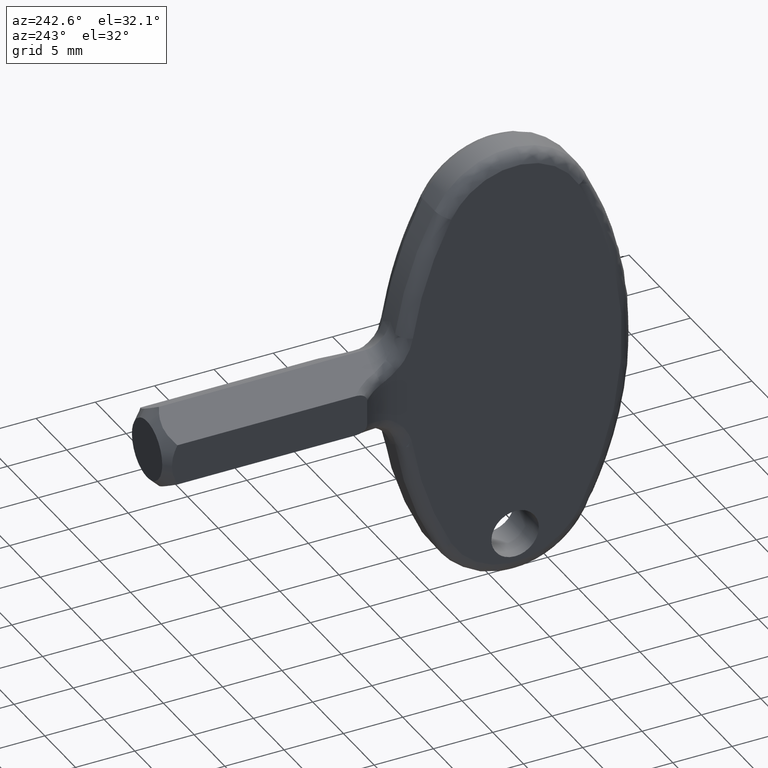
[diagram: clean part render]
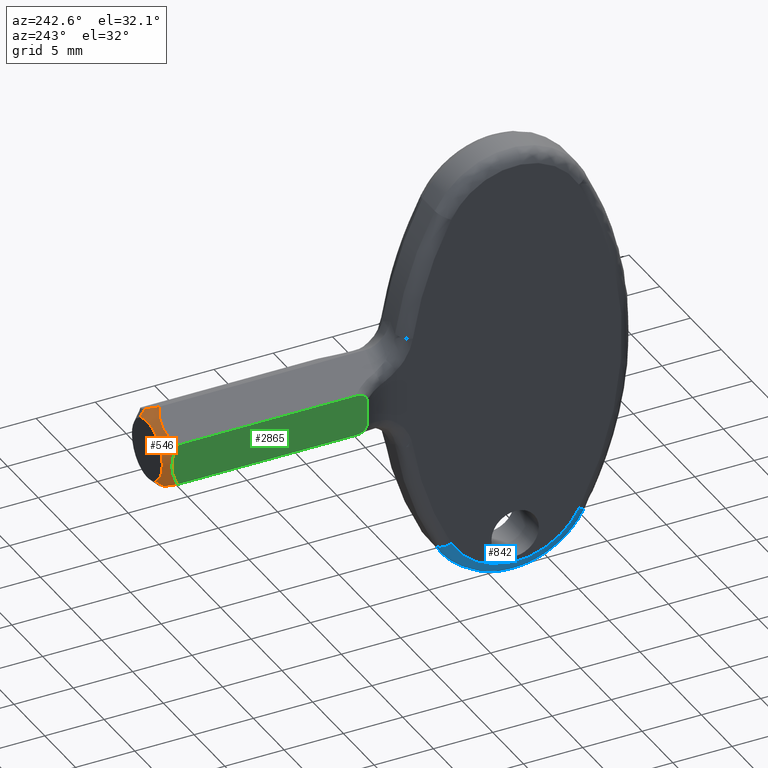
[diagram: same view with three faces highlighted in distinct colors, each labeled with its STEP entity id]
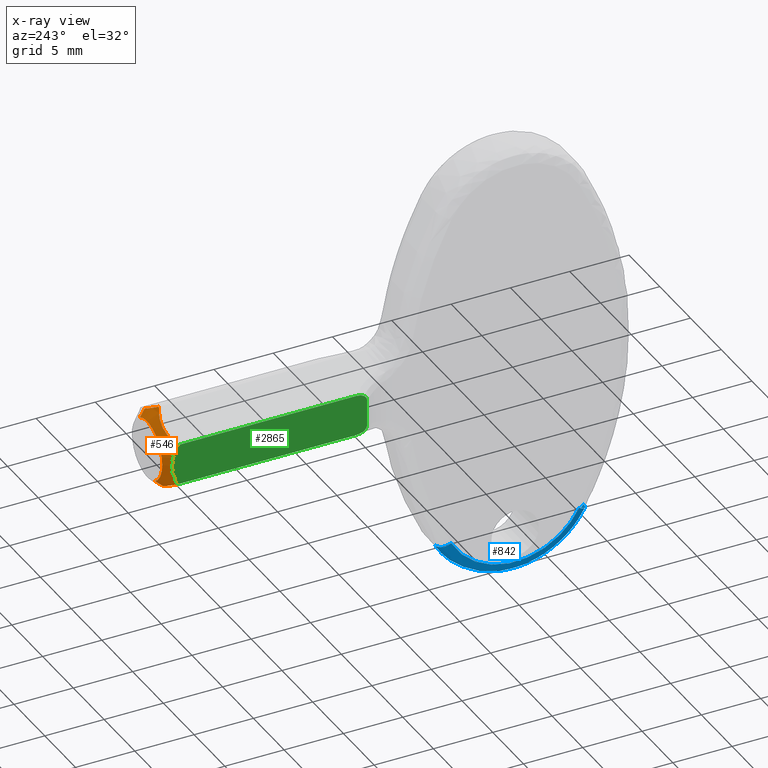
[diagram: x-ray of the same camera — body ghosted, the three highlighted faces saturated]
A machine part, auxiliary view with three faces highlighted in distinct colors.
The next image is the same camera in x-ray (body ghosted, the three faces saturated) — at least one of them is partly hidden behind the body in this view.
Their STEP definitions:

[orange] entity #546 — the highlighted face is a freeform B-spline surface patch.
#273=CARTESIAN_POINT('',(-1.297665209508857,-26.214806938457439,-2.094720244841235));
#274=VERTEX_POINT('',#273);
#299=CARTESIAN_POINT('',(1.175739312482330,-26.214806942355519,2.165508029731734));
#300=VERTEX_POINT('',#299);
#312=CARTESIAN_POINT('',(1.431902244539634,-26.751671035222511,2.637315751354219));
#313=VERTEX_POINT('',#312);
#314=CARTESIAN_POINT('',(1.175739312482330,-26.214806942355519,2.165508029731734));
#315=CARTESIAN_POINT('',(1.431902244539634,-26.751671035222511,2.637315751354219));
#316=QUASI_UNIFORM_CURVE('',1,(#314,#315),.UNSPECIFIED.,.F.,.U.);
#317=EDGE_CURVE('',#300,#313,#316,.T.);
#386=CARTESIAN_POINT('',(-1.580828791198583,-26.752500463046282,-2.551809240544301));
#387=VERTEX_POINT('',#386);
#403=CARTESIAN_POINT('',(-1.297665209508857,-26.214806938457439,-2.094720244841235));
#404=CARTESIAN_POINT('',(-1.580828791198583,-26.752500463046282,-2.551809240544301));
#405=QUASI_UNIFORM_CURVE('',1,(#403,#404),.UNSPECIFIED.,.F.,.U.);
#406=EDGE_CURVE('',#274,#387,#405,.T.);
#411=CARTESIAN_POINT('',(1.163805934014627,-26.189797000902889,2.143528814934934));
#412=CARTESIAN_POINT('',(-0.979722880920304,-26.189797000902892,3.307334748949560));
#413=CARTESIAN_POINT('',(-2.143528814934931,-26.189797000902889,1.163805934014629));
#414=CARTESIAN_POINT('',(-3.242572952098581,-26.189797000902885,-0.860442875895608));
#415=CARTESIAN_POINT('',(-1.284494328227716,-26.189797000902892,-2.073459513290489));
#416=CARTESIAN_POINT('',(1.665309631810109,-27.240842212959141,3.067211703638544));
#417=CARTESIAN_POINT('',(-1.401902071828433,-27.240842212959144,4.732521335448652));
#418=CARTESIAN_POINT('',(-3.067211703638542,-27.240842212959141,1.665309631810111));
#419=CARTESIAN_POINT('',(-4.639852582938313,-27.240842212959144,-1.231222291424867));
#420=CARTESIAN_POINT('',(-1.838004700168668,-27.240842212959155,-2.966948352582943));
#428=(BOUNDED_SURFACE()B_SPLINE_SURFACE(2,1,((#411,#416),(#412,#417),(#413,#418),(#414,#419),(#415,#420)),.UNSPECIFIED.,.F.,.F.,.U.)B_SPLINE_SURFACE_WITH_KNOTS((3,2,3),(2,2),(0.0,5.782645358894208,11.333984903432651),(0.0,1.0),.UNSPECIFIED.)GEOMETRIC_REPRESENTATION_ITEM()RATIONAL_B_SPLINE_SURFACE(((1.0,1.0),(0.707106781186548,0.707106781186548),(1.0,1.0),(0.718822509939086,0.718822509939086),(0.977505800795127,0.977505800795127)))REPRESENTATION_ITEM('')SURFACE());
#429=CARTESIAN_POINT('',(-2.464099999999854,-26.214807000000000,0.000000549874393));
#430=VERTEX_POINT('',#429);
#431=CARTESIAN_POINT('',(-1.297665209508857,-26.214806938457439,-2.094720244841235));
#432=CARTESIAN_POINT('',(-1.519483195539864,-26.214806942489769,-1.957470837857139));
#433=CARTESIAN_POINT('',(-1.888798378403385,-26.214806951889251,-1.637543292036030));
#434=CARTESIAN_POINT('',(-2.233330326225544,-26.214806967904771,-1.092423963182562));
#435=CARTESIAN_POINT('',(-2.421935282825272,-26.214806983908058,-0.547717388774368));
#436=CARTESIAN_POINT('',(-2.464146037525833,-26.214806994252680,-0.195622952133366));
#437=CARTESIAN_POINT('',(-2.464099999999854,-26.214807000000000,0.000000549874393));
#438=B_SPLINE_CURVE_WITH_KNOTS('',3,(#431,#432,#433,#434,#435,#436,#437),.UNSPECIFIED.,.F.,.U.,(4,1,1,1,4),(0.000000020946596,0.782491319153616,1.447596712167855,1.917097611617938,2.503963050045646),.UNSPECIFIED.);
#439=EDGE_CURVE('',#274,#430,#438,.T.);
#440=ORIENTED_EDGE('',*,*,#439,.F.);
#441=ORIENTED_EDGE('',*,*,#406,.T.);
#442=CARTESIAN_POINT('',(-3.0,-27.214783211632849,-1.732000000000000));
#443=VERTEX_POINT('',#442);
#444=CARTESIAN_POINT('',(-1.580828791198583,-26.752500463046282,-2.551809240544301));
#445=CARTESIAN_POINT('',(-1.682654766484204,-26.756128971609840,-2.492987679057877));
#446=CARTESIAN_POINT('',(-1.783818398643760,-26.766636211319359,-2.434548730227875));
#447=CARTESIAN_POINT('',(-2.013144234109715,-26.805316554255690,-2.302074630603169));
#448=CARTESIAN_POINT('',(-2.140910497367737,-26.837601672894941,-2.228268200644740));
#449=CARTESIAN_POINT('',(-2.394670757458717,-26.920577693788161,-2.081679117586273));
#450=CARTESIAN_POINT('',(-2.518884909391818,-26.970640535059839,-2.009924623246231));
#451=CARTESIAN_POINT('',(-2.762554041272372,-27.083705407321681,-1.869164850980541));
#452=CARTESIAN_POINT('',(-2.882137896602305,-27.146752509892170,-1.800085125920031));
#453=CARTESIAN_POINT('',(-3.0,-27.214783211632849,-1.732000000000000));
#454=B_SPLINE_CURVE_WITH_KNOTS('',3,(#444,#445,#446,#447,#448,#449,#450,#451,#452,#453),.UNSPECIFIED.,.F.,.U.,(4,2,2,2,4),(0.527411272684405,0.625000000000000,0.750000000000000,0.875000000000000,1.0),.UNSPECIFIED.);
#455=EDGE_CURVE('',#387,#443,#454,.T.);
#456=ORIENTED_EDGE('',*,*,#455,.T.);
#457=CARTESIAN_POINT('',(-3.0,-27.214783211632849,1.732000000000000));
#458=VERTEX_POINT('',#457);
#459=CARTESIAN_POINT('',(-3.0,-27.214783211632849,-1.732000000000001));
#460=CARTESIAN_POINT('',(-3.0,-27.147704106223880,-1.597838837560724));
#461=CARTESIAN_POINT('',(-3.0,-27.085082365954239,-1.461019326312583));
#462=CARTESIAN_POINT('',(-3.0,-27.000218416237900,-1.250381558546961));
#463=CARTESIAN_POINT('',(-3.0,-26.973397651901990,-1.179084988462207));
#464=CARTESIAN_POINT('',(-3.0,-26.923832483836481,-1.035968970738439));
#465=CARTESIAN_POINT('',(-3.0,-26.901027976103681,-0.964020642895902));
#466=CARTESIAN_POINT('',(-3.0,-26.839166134332459,-0.746882865143813));
#467=CARTESIAN_POINT('',(-3.0,-26.806669484556760,-0.600398844547657));
#468=CARTESIAN_POINT('',(-3.000000000000001,-26.773485597737139,-0.377602260740404));
#469=CARTESIAN_POINT('',(-3.0,-26.765016509217219,-0.302825231995662));
#470=CARTESIAN_POINT('',(-2.999999999999999,-26.753624987984480,-0.152176694459734));
#471=CARTESIAN_POINT('',(-3.0,-26.750703945016550,-0.076142731150350));
#472=CARTESIAN_POINT('',(-3.0,-26.750719231988398,0.305172276694251));
#473=CARTESIAN_POINT('',(-3.0,-26.797796443903959,0.601774982061606));
#474=CARTESIAN_POINT('',(-3.0,-26.901181110273871,0.964532690023094));
#475=CARTESIAN_POINT('',(-3.0,-26.924062854563608,1.036688414793781));
#476=CARTESIAN_POINT('',(-2.999999999999999,-26.973830893556759,1.180280950829475));
#477=CARTESIAN_POINT('',(-3.0,-27.000586976190419,1.251330650880655));
#478=CARTESIAN_POINT('',(-2.999999999999999,-27.085284034353030,1.461450700774133));
#479=CARTESIAN_POINT('',(-3.0,-27.147796226140208,1.598023081446885));
#480=CARTESIAN_POINT('',(-3.0,-27.214783211632849,1.732000000000003));
#481=B_SPLINE_CURVE_WITH_KNOTS('',3,(#459,#460,#461,#462,#463,#464,#465,#466,#467,#468,#469,#470,#471,#472,#473,#474,#475,#476,#477,#478,#479,#480),.UNSPECIFIED.,.F.,.U.,(4,2,2,2,2,2,2,2,2,2,4),(0.0,0.125000000000001,0.187500000000001,0.250000000000001,0.375000000000001,0.437500000000002,0.500000000000002,0.750000000000003,0.812500000000002,0.875000000000002,1.0),.UNSPECIFIED.);
#482=EDGE_CURVE('',#443,#458,#481,.T.);
#483=ORIENTED_EDGE('',*,*,#482,.T.);
#484=CARTESIAN_POINT('',(9.168277E-015,-27.214707000000100,3.464000000000000));
#485=VERTEX_POINT('',#484);
#486=CARTESIAN_POINT('',(-3.0,-27.214783211632849,1.732000000000000));
#487=CARTESIAN_POINT('',(-2.765605443605633,-27.079450489344080,1.867323790558349));
#488=CARTESIAN_POINT('',(-2.525923533749375,-26.964382089513499,2.005700146515361));
#489=CARTESIAN_POINT('',(-2.153539856137548,-26.841069869177382,2.220689656389923));
#490=CARTESIAN_POINT('',(-2.027245883503552,-26.808267519054770,2.293603376590617));
#491=CARTESIAN_POINT('',(-1.833799680967095,-26.774414499208621,2.405286317521665));
#492=CARTESIAN_POINT('',(-1.768649466875101,-26.765690899305159,2.442899707790776));
#493=CARTESIAN_POINT('',(-1.636886604274114,-26.753848628847791,2.518970800465746));
#494=CARTESIAN_POINT('',(-1.571005958509198,-26.750810878671601,2.557005893287358));
#495=CARTESIAN_POINT('',(-1.374585769063117,-26.750322133642310,2.670405815994229));
#496=CARTESIAN_POINT('',(-1.244745190283104,-26.761483988307081,2.745367110143223));
#497=CARTESIAN_POINT('',(-0.987103192808298,-26.804983730648861,2.894112423352010));
#498=CARTESIAN_POINT('',(-0.859299740599007,-26.837300500920492,2.967897616427508));
#499=CARTESIAN_POINT('',(-0.605465659371895,-26.920344250009659,3.114444492655963));
#500=CARTESIAN_POINT('',(-0.481227696398264,-26.970437742023471,3.186171209946072));
#501=CARTESIAN_POINT('',(-0.237501296281377,-27.083566669415909,3.326882584946888));
#502=CARTESIAN_POINT('',(-0.117889566306134,-27.146645423719050,3.395938423719260));
#503=CARTESIAN_POINT('',(9.168277E-015,-27.214707000000100,3.464000000000000));
#504=B_SPLINE_CURVE_WITH_KNOTS('',3,(#486,#487,#488,#489,#490,#491,#492,#493,#494,#495,#496,#497,#498,#499,#500,#501,#502,#503),.UNSPECIFIED.,.F.,.U.,(4,2,2,2,2,2,2,2,4),(0.0,0.250000000000000,0.375000000000001,0.437500000000001,0.500000000000001,0.625000000000001,0.750000000000000,0.875000000000000,1.0),.UNSPECIFIED.);
#505=EDGE_CURVE('',#458,#485,#504,.T.);
#506=ORIENTED_EDGE('',*,*,#505,.T.);
#507=CARTESIAN_POINT('',(1.473603E-015,-27.214707000000079,3.463999999999999));
#508=CARTESIAN_POINT('',(0.234397859508904,-27.079381302443618,3.328674302443528));
#509=CARTESIAN_POINT('',(0.474083269915045,-26.964322309079460,3.190295925502383));
#510=CARTESIAN_POINT('',(0.846472421409512,-26.841029005965520,2.975303255372912));
#511=CARTESIAN_POINT('',(0.972768252745577,-26.808233757897760,2.902388462081557));
#512=CARTESIAN_POINT('',(1.166217222288922,-26.774392541412301,2.790703923665201));
#513=CARTESIAN_POINT('',(1.231368354562315,-26.765673065383609,2.753090003299362));
#514=CARTESIAN_POINT('',(1.342178519577310,-26.755721287738549,2.689115601364038));
#515=CARTESIAN_POINT('',(1.387104895916333,-26.753027357735601,2.663178106757642));
#516=CARTESIAN_POINT('',(1.431902244539634,-26.751671035222511,2.637315751354219));
#517=B_SPLINE_CURVE_WITH_KNOTS('',3,(#507,#508,#509,#510,#511,#512,#513,#514,#515,#516),.UNSPECIFIED.,.F.,.U.,(4,2,2,2,4),(0.0,0.250000000000001,0.375000000000001,0.437500000000001,0.480121279270310),.UNSPECIFIED.);
#518=EDGE_CURVE('',#485,#313,#517,.T.);
#519=ORIENTED_EDGE('',*,*,#518,.T.);
#520=ORIENTED_EDGE('',*,*,#317,.F.);
#521=CARTESIAN_POINT('',(0.0,-26.214807000000000,2.464099999999917));
#522=VERTEX_POINT('',#521);
#523=CARTESIAN_POINT('',(0.0,-26.214807000000000,2.464099999999917));
#524=CARTESIAN_POINT('',(0.268140195351695,-26.214806986853588,2.464271330142872));
#525=CARTESIAN_POINT('',(0.676572414485503,-26.214806966828728,2.396729135571441));
#526=CARTESIAN_POINT('',(1.052320073555937,-26.214806948406601,2.232518694227405));
#527=CARTESIAN_POINT('',(1.175739312482330,-26.214806942355519,2.165508029731734));
#528=B_SPLINE_CURVE_WITH_KNOTS('',3,(#523,#524,#525,#526,#527),.UNSPECIFIED.,.F.,.U.,(4,1,4),(6.342983E-009,0.804345863623854,1.225670751675012),.UNSPECIFIED.);
#529=EDGE_CURVE('',#522,#300,#528,.T.);
#530=ORIENTED_EDGE('',*,*,#529,.F.);
#531=CARTESIAN_POINT('',(-2.464099999999854,-26.214807000000000,0.000000549874393));
#532=CARTESIAN_POINT('',(-2.464241484360510,-26.214806999999940,0.252014968523982));
#533=CARTESIAN_POINT('',(-2.411055761626570,-26.214807000000039,0.594639920704526));
#534=CARTESIAN_POINT('',(-2.239412984813729,-26.214807000000071,1.047796632533868));
#535=CARTESIAN_POINT('',(-2.034550290792084,-26.214806999999720,1.420059278910730));
#536=CARTESIAN_POINT('',(-1.672623284412560,-26.214807000000349,1.844988607942948));
#537=CARTESIAN_POINT('',(-1.215207787850443,-26.214806999999809,2.167070621540290));
#538=CARTESIAN_POINT('',(-0.645034411306114,-26.214807000000270,2.403264672045387));
#539=CARTESIAN_POINT('',(-0.252005593630950,-26.214806999999951,2.464207196542860));
#540=CARTESIAN_POINT('',(0.0,-26.214807000000000,2.464099999999917));
#541=B_SPLINE_CURVE_WITH_KNOTS('',3,(#531,#532,#533,#534,#535,#536,#537,#538,#539,#540),.UNSPECIFIED.,.F.,.U.,(4,1,1,1,1,1,1,4),(0.000000062426321,0.755980475378370,1.028135582315662,1.451494481745473,2.026026629591440,2.691291415230456,3.114643422492545,3.870623205306314),.UNSPECIFIED.);
#542=EDGE_CURVE('',#430,#522,#541,.T.);
#543=ORIENTED_EDGE('',*,*,#542,.F.);
#544=EDGE_LOOP('',(#440,#441,#456,#483,#506,#519,#520,#530,#543));
#545=FACE_OUTER_BOUND('',#544,.T.);
#546=ADVANCED_FACE('',(#545),#428,.T.);

[blue] entity #842 — the highlighted face is a freeform B-spline surface patch.
#660=CARTESIAN_POINT('',(-2.0,-61.600066539237901,-14.289291123813360));
#661=VERTEX_POINT('',#660);
#662=CARTESIAN_POINT('',(-1.0,-62.479776247051213,-14.764802248792600));
#663=VERTEX_POINT('',#662);
#664=CARTESIAN_POINT('',(-2.0,-61.600066539237901,-14.289291123813360));
#665=CARTESIAN_POINT('',(-2.000111500773128,-61.708039253795683,-14.347653816086050));
#666=CARTESIAN_POINT('',(-1.963376383672546,-61.880696199757118,-14.440980396298210));
#667=CARTESIAN_POINT('',(-1.838252918045417,-62.092791174379691,-14.555624487513111));
#668=CARTESIAN_POINT('',(-1.668708614500387,-62.270142375293098,-14.651488462087659));
#669=CARTESIAN_POINT('',(-1.392606563590662,-62.432467944147668,-14.739230603811590));
#670=CARTESIAN_POINT('',(-1.139098644417758,-62.479924425514881,-14.764882343973291));
#671=CARTESIAN_POINT('',(-1.0,-62.479776247051213,-14.764802248792600));
#672=B_SPLINE_CURVE_WITH_KNOTS('',3,(#664,#665,#666,#667,#668,#669,#670,#671),.UNSPECIFIED.,.F.,.U.,(4,1,1,1,1,4),(0.000000086231302,0.368163986613704,0.589074801685017,0.809950586006599,1.153581815667513,1.570835744339486),.UNSPECIFIED.);
#673=EDGE_CURVE('',#661,#663,#672,.T.);
#763=CARTESIAN_POINT('',(-0.930462757673195,-49.634449557577369,-14.095383895865728));
#764=CARTESIAN_POINT('',(-0.930462757673195,-51.452102304269133,-18.497598623958087));
#765=CARTESIAN_POINT('',(-0.930462757673195,-56.214807000110497,-18.497598623958087));
#766=CARTESIAN_POINT('',(-0.930462757673195,-60.977511317026284,-18.497598623958076));
#767=CARTESIAN_POINT('',(-0.930462757673195,-62.795164242838325,-14.095384379778785));
#768=CARTESIAN_POINT('',(-2.077538267347310,-49.560543576623047,-14.125899310850208));
#769=CARTESIAN_POINT('',(-2.077538267347310,-51.398610930036689,-18.577556641520381));
#770=CARTESIAN_POINT('',(-2.077538267347309,-56.214807000110497,-18.577556641520381));
#771=CARTESIAN_POINT('',(-2.077538267347309,-61.031002687002896,-18.577556641520374));
#772=CARTESIAN_POINT('',(-2.077538267347309,-62.869070221548540,-14.125899800198232));
#773=CARTESIAN_POINT('',(-1.997579298540556,-50.620796675125959,-13.688126036324510));
#774=CARTESIAN_POINT('',(-1.997579298540557,-52.165996661757099,-17.430481198154094));
#775=CARTESIAN_POINT('',(-1.997579298540556,-56.214807000110497,-17.430481198154084));
#776=CARTESIAN_POINT('',(-1.997579298540556,-60.263617016336475,-17.430481198154091));
#777=CARTESIAN_POINT('',(-1.997579298540557,-61.808817155239048,-13.688126447702555));
#785=(BOUNDED_SURFACE()B_SPLINE_SURFACE(2,2,((#763,#768,#773),(#764,#769,#774),(#765,#770,#775),(#766,#771,#776),(#767,#772,#777)),.UNSPECIFIED.,.F.,.F.,.U.)B_SPLINE_SURFACE_WITH_KNOTS((3,2,3),(3,3),(0.0,8.646537427997577,17.293074293065029),(0.0,1.822375235531459),.UNSPECIFIED.)GEOMETRIC_REPRESENTATION_ITEM()RATIONAL_B_SPLINE_SURFACE(((0.891036282880326,0.584720002314034,0.891036619526303),(0.752227571471984,0.493630299666319,0.752227855674087),(0.919257690177066,0.603239586372399,0.919258037485485),(0.752227582346428,0.493630306802398,0.752227866548535),(0.891036264806132,0.584719990453301,0.891036601452101)))REPRESENTATION_ITEM('')SURFACE());
#786=CARTESIAN_POINT('',(-2.0,-50.829547461211902,-14.289291123774660));
#787=VERTEX_POINT('',#786);
#788=CARTESIAN_POINT('',(-1.0,-49.949837753211099,-14.764802248869140));
#789=VERTEX_POINT('',#788);
#790=CARTESIAN_POINT('',(-2.0,-50.829547461211902,-14.289291123774660));
#791=CARTESIAN_POINT('',(-2.000055477026006,-50.735980938994530,-14.339866810101761));
#792=CARTESIAN_POINT('',(-1.971007114646643,-50.577675565451173,-14.425435908177549));
#793=CARTESIAN_POINT('',(-1.857885782024525,-50.360421820440898,-14.542868479150931));
#794=CARTESIAN_POINT('',(-1.718609192336952,-50.207324168378349,-14.625622637846140));
#795=CARTESIAN_POINT('',(-1.545494210278807,-50.085464077078342,-14.691491899707410));
#796=CARTESIAN_POINT('',(-1.319006485599269,-49.982051167805423,-14.747389871947981));
#797=CARTESIAN_POINT('',(-1.122735467804579,-49.949741177389100,-14.764854451177900));
#798=CARTESIAN_POINT('',(-1.0,-49.949837753211099,-14.764802248869140));
#799=B_SPLINE_CURVE_WITH_KNOTS('',3,(#790,#791,#792,#793,#794,#795,#796,#797,#798),.UNSPECIFIED.,.F.,.U.,(4,1,1,1,1,1,4),(0.000000086229432,0.319071751797172,0.539979768580550,0.809950586129590,0.981761029036349,1.202671844141867,1.570835744580915),.UNSPECIFIED.);
#800=EDGE_CURVE('',#787,#789,#799,.T.);
#801=ORIENTED_EDGE('',*,*,#800,.T.);
#802=CARTESIAN_POINT('',(-1.0,-62.479776247051213,-14.764802248792600));
#803=CARTESIAN_POINT('',(-1.0,-62.204924735780899,-15.273634467252229));
#804=CARTESIAN_POINT('',(-0.999999999999998,-61.693009842015350,-15.994223853058021));
#805=CARTESIAN_POINT('',(-1.000000000000001,-60.716304907118733,-16.938792549072179));
#806=CARTESIAN_POINT('',(-0.999999999999999,-59.760040058460497,-17.599811924039621));
#807=CARTESIAN_POINT('',(-1.000000000000000,-58.702560111908198,-18.077360551992829));
#808=CARTESIAN_POINT('',(-1.000000000000007,-57.646822009857608,-18.382573865178319));
#809=CARTESIAN_POINT('',(-0.999999999999997,-56.614650381312551,-18.517735158337931));
#810=CARTESIAN_POINT('',(-1.000000000000000,-55.515735947878767,-18.490016647959649));
#811=CARTESIAN_POINT('',(-1.0,-54.510177746281173,-18.319467457606770));
#812=CARTESIAN_POINT('',(-0.999999999999999,-53.350603339572771,-17.941685966964481));
#813=CARTESIAN_POINT('',(-1.000000000000002,-52.238860892025933,-17.340633670150101));
#814=CARTESIAN_POINT('',(-0.999999999999996,-51.311957798247292,-16.577346899849971));
#815=CARTESIAN_POINT('',(-1.000000000000009,-50.558359193908423,-15.750614134833310));
#816=CARTESIAN_POINT('',(-0.999999999999978,-50.158411153457962,-15.150767172438821));
#817=CARTESIAN_POINT('',(-1.0,-49.949837753211099,-14.764802248869140));
#818=B_SPLINE_CURVE_WITH_KNOTS('',3,(#802,#803,#804,#805,#806,#807,#808,#809,#810,#811,#812,#813,#814,#815,#816,#817),.UNSPECIFIED.,.F.,.U.,(4,1,1,1,1,1,1,1,1,1,1,1,1,4),(0.000000056356456,1.734900595839289,2.632279413443600,4.068084073406661,5.204753990855997,6.102132728825755,7.358453948975981,8.315615641970354,9.392483318102784,10.409497625611420,11.964953464976620,13.161458114476339,13.998993494945999,15.315135247570050),.UNSPECIFIED.);
#819=EDGE_CURVE('',#663,#789,#818,.T.);
#820=ORIENTED_EDGE('',*,*,#819,.F.);
#821=ORIENTED_EDGE('',*,*,#673,.F.);
#822=CARTESIAN_POINT('',(-2.0,-50.829547461211902,-14.289291123774660));
#823=CARTESIAN_POINT('',(-2.0,-51.082087083909073,-14.756848138461530));
#824=CARTESIAN_POINT('',(-2.000000000000004,-51.568303630513249,-15.429213877700500));
#825=CARTESIAN_POINT('',(-1.999999999999989,-52.453882205055891,-16.243397546670248));
#826=CARTESIAN_POINT('',(-2.000000000000019,-53.303649079401133,-16.799711001275980));
#827=CARTESIAN_POINT('',(-2.000000000000005,-54.332117122876681,-17.238438146877741));
#828=CARTESIAN_POINT('',(-1.999999999999976,-55.457470507888040,-17.493221148312511));
#829=CARTESIAN_POINT('',(-1.999999999999970,-56.628644782166589,-17.522707817356149));
#830=CARTESIAN_POINT('',(-2.000000000000065,-57.783142046542842,-17.331897427304661));
#831=CARTESIAN_POINT('',(-1.999999999999959,-58.770467334635399,-16.973027128238162));
#832=CARTESIAN_POINT('',(-2.000000000000004,-59.532510780018640,-16.540070900169042));
#833=CARTESIAN_POINT('',(-1.999999999999996,-60.140705896891681,-16.092672634596660));
#834=CARTESIAN_POINT('',(-2.000000000000004,-60.871433125817127,-15.415209608905680));
#835=CARTESIAN_POINT('',(-1.999999999999997,-61.347538207183391,-14.756858836931681));
#836=CARTESIAN_POINT('',(-2.0,-61.600066539237901,-14.289291123813360));
#837=B_SPLINE_CURVE_WITH_KNOTS('',3,(#822,#823,#824,#825,#826,#827,#828,#829,#830,#831,#832,#833,#834,#835,#836),.UNSPECIFIED.,.F.,.U.,(4,1,1,1,1,1,1,1,1,1,1,1,4),(0.000000067263363,1.594140658604021,2.468365302372416,3.599703383353713,4.628196834843411,5.810954042788731,7.045107026163488,8.125029595706344,9.307801334124610,10.182018527630960,10.747685083948650,11.570474728868909,13.164626183083049),.UNSPECIFIED.);
#838=EDGE_CURVE('',#787,#661,#837,.T.);
#839=ORIENTED_EDGE('',*,*,#838,.F.);
#840=EDGE_LOOP('',(#801,#820,#821,#839));
#841=FACE_OUTER_BOUND('',#840,.T.);
#842=ADVANCED_FACE('',(#841),#785,.T.);

[green] entity #2865 — the highlighted face is a freeform B-spline surface patch.
#442=CARTESIAN_POINT('',(-3.0,-27.214783211632849,-1.732000000000000));
#443=VERTEX_POINT('',#442);
#457=CARTESIAN_POINT('',(-3.0,-27.214783211632849,1.732000000000000));
#458=VERTEX_POINT('',#457);
#459=CARTESIAN_POINT('',(-3.0,-27.214783211632849,-1.732000000000001));
#460=CARTESIAN_POINT('',(-3.0,-27.147704106223880,-1.597838837560724));
#461=CARTESIAN_POINT('',(-3.0,-27.085082365954239,-1.461019326312583));
#462=CARTESIAN_POINT('',(-3.0,-27.000218416237900,-1.250381558546961));
#463=CARTESIAN_POINT('',(-3.0,-26.973397651901990,-1.179084988462207));
#464=CARTESIAN_POINT('',(-3.0,-26.923832483836481,-1.035968970738439));
#465=CARTESIAN_POINT('',(-3.0,-26.901027976103681,-0.964020642895902));
#466=CARTESIAN_POINT('',(-3.0,-26.839166134332459,-0.746882865143813));
#467=CARTESIAN_POINT('',(-3.0,-26.806669484556760,-0.600398844547657));
#468=CARTESIAN_POINT('',(-3.000000000000001,-26.773485597737139,-0.377602260740404));
#469=CARTESIAN_POINT('',(-3.0,-26.765016509217219,-0.302825231995662));
#470=CARTESIAN_POINT('',(-2.999999999999999,-26.753624987984480,-0.152176694459734));
#471=CARTESIAN_POINT('',(-3.0,-26.750703945016550,-0.076142731150350));
#472=CARTESIAN_POINT('',(-3.0,-26.750719231988398,0.305172276694251));
#473=CARTESIAN_POINT('',(-3.0,-26.797796443903959,0.601774982061606));
#474=CARTESIAN_POINT('',(-3.0,-26.901181110273871,0.964532690023094));
#475=CARTESIAN_POINT('',(-3.0,-26.924062854563608,1.036688414793781));
#476=CARTESIAN_POINT('',(-2.999999999999999,-26.973830893556759,1.180280950829475));
#477=CARTESIAN_POINT('',(-3.0,-27.000586976190419,1.251330650880655));
#478=CARTESIAN_POINT('',(-2.999999999999999,-27.085284034353030,1.461450700774133));
#479=CARTESIAN_POINT('',(-3.0,-27.147796226140208,1.598023081446885));
#480=CARTESIAN_POINT('',(-3.0,-27.214783211632849,1.732000000000003));
#481=B_SPLINE_CURVE_WITH_KNOTS('',3,(#459,#460,#461,#462,#463,#464,#465,#466,#467,#468,#469,#470,#471,#472,#473,#474,#475,#476,#477,#478,#479,#480),.UNSPECIFIED.,.F.,.U.,(4,2,2,2,2,2,2,2,2,2,4),(0.0,0.125000000000001,0.187500000000001,0.250000000000001,0.375000000000001,0.437500000000002,0.500000000000002,0.750000000000003,0.812500000000002,0.875000000000002,1.0),.UNSPECIFIED.);
#482=EDGE_CURVE('',#443,#458,#481,.T.);
#1283=CARTESIAN_POINT('',(-3.0,-43.214807000000000,1.039174596122460));
#1284=VERTEX_POINT('',#1283);
#1285=CARTESIAN_POINT('',(-3.0,-42.246167560290303,1.732000000000000));
#1286=VERTEX_POINT('',#1285);
#1287=CARTESIAN_POINT('',(-3.0,-43.214807000000000,1.039174596122420));
#1288=CARTESIAN_POINT('',(-3.0,-43.214806999999993,1.095146140128865));
#1289=CARTESIAN_POINT('',(-3.000000000000001,-43.208007416826760,1.149989578650173));
#1290=CARTESIAN_POINT('',(-3.0,-43.185904043015107,1.230279767337100));
#1291=CARTESIAN_POINT('',(-3.0,-43.176442507301637,1.256867239634961));
#1292=CARTESIAN_POINT('',(-3.0,-43.154003802763462,1.307583937837306));
#1293=CARTESIAN_POINT('',(-3.0,-43.140998380836123,1.331913757656596));
#1294=CARTESIAN_POINT('',(-3.0,-43.096853672972642,1.401949943244760));
#1295=CARTESIAN_POINT('',(-3.0,-43.060088639561513,1.444996346388036));
#1296=CARTESIAN_POINT('',(-3.0,-42.998748688099568,1.501152455791730));
#1297=CARTESIAN_POINT('',(-3.0,-42.977193084094552,1.518625055535203));
#1298=CARTESIAN_POINT('',(-3.000000000000001,-42.932080259963378,1.551321088942201));
#1299=CARTESIAN_POINT('',(-3.0,-42.908540734353082,1.566509796990819));
#1300=CARTESIAN_POINT('',(-3.0,-42.836663376773110,1.608201618673211));
#1301=CARTESIAN_POINT('',(-3.0,-42.786602136951821,1.631241212725308));
#1302=CARTESIAN_POINT('',(-3.0,-42.683094782292663,1.669809941971909));
#1303=CARTESIAN_POINT('',(-3.0,-42.629313833859626,1.685360840723235));
#1304=CARTESIAN_POINT('',(-2.999999999999999,-42.467206307745457,1.721408440788251));
#1305=CARTESIAN_POINT('',(-3.0,-42.357378781633201,1.731999999999967));
#1306=CARTESIAN_POINT('',(-3.0,-42.246167560290253,1.731999999999970));
#1307=B_SPLINE_CURVE_WITH_KNOTS('',3,(#1287,#1288,#1289,#1290,#1291,#1292,#1293,#1294,#1295,#1296,#1297,#1298,#1299,#1300,#1301,#1302,#1303,#1304,#1305,#1306),.UNSPECIFIED.,.F.,.U.,(4,2,2,2,2,2,2,2,2,4),(0.0,0.124999999999993,0.187499999999989,0.249999999999986,0.374999999999969,0.437499999999967,0.499999999999965,0.624999999999973,0.749999999999982,1.0),.UNSPECIFIED.);
#1308=EDGE_CURVE('',#1284,#1286,#1307,.T.);
#1470=CARTESIAN_POINT('',(-3.0,-42.246413019791497,-1.732000000000000));
#1471=VERTEX_POINT('',#1470);
#1472=CARTESIAN_POINT('',(-3.0,-43.214807000000000,-1.039274563709224));
#1473=VERTEX_POINT('',#1472);
#1474=CARTESIAN_POINT('',(-2.999999999999965,-42.246413019791447,-1.732000000000000));
#1475=CARTESIAN_POINT('',(-2.999999999999965,-42.357577282917219,-1.731999999999998));
#1476=CARTESIAN_POINT('',(-3.0,-42.466921625229723,-1.721393188315178));
#1477=CARTESIAN_POINT('',(-3.0,-42.627570439072080,-1.685855437828425));
#1478=CARTESIAN_POINT('',(-3.0,-42.680551771128080,-1.670697530738425));
#1479=CARTESIAN_POINT('',(-3.0,-42.785076001636860,-1.631998277983124));
#1480=CARTESIAN_POINT('',(-3.000000000000001,-42.835723356257311,-1.608748110272058));
#1481=CARTESIAN_POINT('',(-3.0,-42.907638108799802,-1.567158937856098));
#1482=CARTESIAN_POINT('',(-3.0,-42.930980322105952,-1.552150150252280));
#1483=CARTESIAN_POINT('',(-3.0,-42.976211631302647,-1.519487266093805));
#1484=CARTESIAN_POINT('',(-3.0,-42.998030913203067,-1.501855490743845));
#1485=CARTESIAN_POINT('',(-3.0,-43.038990504879017,-1.464462516504485));
#1486=CARTESIAN_POINT('',(-3.0,-43.058257241543899,-1.444615602994118));
#1487=CARTESIAN_POINT('',(-3.0,-43.094112791000640,-1.402382118911291));
#1488=CARTESIAN_POINT('',(-3.0,-43.110796721284302,-1.379843121315503));
#1489=CARTESIAN_POINT('',(-3.0,-43.155642150433593,-1.308971536255750));
#1490=CARTESIAN_POINT('',(-3.0,-43.177999396889668,-1.258564840515158));
#1491=CARTESIAN_POINT('',(-3.0,-43.200325980884422,-1.178258350876370));
#1492=CARTESIAN_POINT('',(-3.0,-43.205882525162529,-1.150589467222397));
#1493=CARTESIAN_POINT('',(-3.0,-43.213090938569898,-1.095209680478149));
#1494=CARTESIAN_POINT('',(-3.0,-43.214807000000022,-1.067328877316217));
#1495=CARTESIAN_POINT('',(-3.0,-43.214807000000000,-1.039274563709196));
#1496=B_SPLINE_CURVE_WITH_KNOTS('',3,(#1474,#1475,#1476,#1477,#1478,#1479,#1480,#1481,#1482,#1483,#1484,#1485,#1486,#1487,#1488,#1489,#1490,#1491,#1492,#1493,#1494,#1495),.UNSPECIFIED.,.F.,.U.,(4,2,2,2,2,2,2,2,2,2,4),(0.0,0.250000000000014,0.375000000000020,0.500000000000027,0.562500000000024,0.625000000000021,0.687500000000017,0.750000000000014,0.875000000000007,0.937500000000003,1.0),.UNSPECIFIED.);
#1497=EDGE_CURVE('',#1471,#1473,#1496,.T.);
#2803=CARTESIAN_POINT('',(-3.0,-43.214807000000000,1.039174596122460));
#2804=CARTESIAN_POINT('',(-3.0,-43.214807000000000,-1.039274563709224));
#2805=QUASI_UNIFORM_CURVE('',1,(#2803,#2804),.UNSPECIFIED.,.F.,.U.);
#2806=EDGE_CURVE('',#1284,#1473,#2805,.T.);
#2844=CARTESIAN_POINT('',(-3.0,-44.037187313288229,-1.905026793286096));
#2845=CARTESIAN_POINT('',(-3.0,-44.037187313288229,1.905026886197816));
#2846=CARTESIAN_POINT('',(-3.0,-25.928326097931791,-1.905026793286096));
#2847=CARTESIAN_POINT('',(-3.0,-25.928326097931791,1.905026886197816));
#2848=B_SPLINE_SURFACE_WITH_KNOTS('',1,1,((#2844,#2846),(#2845,#2847)),.UNSPECIFIED.,.F.,.F.,.U.,(2,2),(2,2),(0.0,3.810053679483913),(0.0,18.108861215356441),.UNSPECIFIED.);
#2849=ORIENTED_EDGE('',*,*,#2806,.F.);
#2850=ORIENTED_EDGE('',*,*,#1308,.T.);
#2851=CARTESIAN_POINT('',(-3.0,-42.246167560290303,1.732000000000000));
#2852=CARTESIAN_POINT('',(-3.0,-27.214783211632849,1.732000000000000));
#2853=QUASI_UNIFORM_CURVE('',1,(#2851,#2852),.UNSPECIFIED.,.F.,.U.);
#2854=EDGE_CURVE('',#1286,#458,#2853,.T.);
#2855=ORIENTED_EDGE('',*,*,#2854,.T.);
#2856=ORIENTED_EDGE('',*,*,#482,.F.);
#2857=CARTESIAN_POINT('',(-3.0,-42.246413019791497,-1.732000000000000));
#2858=CARTESIAN_POINT('',(-3.0,-27.214783211632849,-1.732000000000000));
#2859=QUASI_UNIFORM_CURVE('',1,(#2857,#2858),.UNSPECIFIED.,.F.,.U.);
#2860=EDGE_CURVE('',#1471,#443,#2859,.T.);
#2861=ORIENTED_EDGE('',*,*,#2860,.F.);
#2862=ORIENTED_EDGE('',*,*,#1497,.T.);
#2863=EDGE_LOOP('',(#2849,#2850,#2855,#2856,#2861,#2862));
#2864=FACE_OUTER_BOUND('',#2863,.T.);
#2865=ADVANCED_FACE('',(#2864),#2848,.T.);